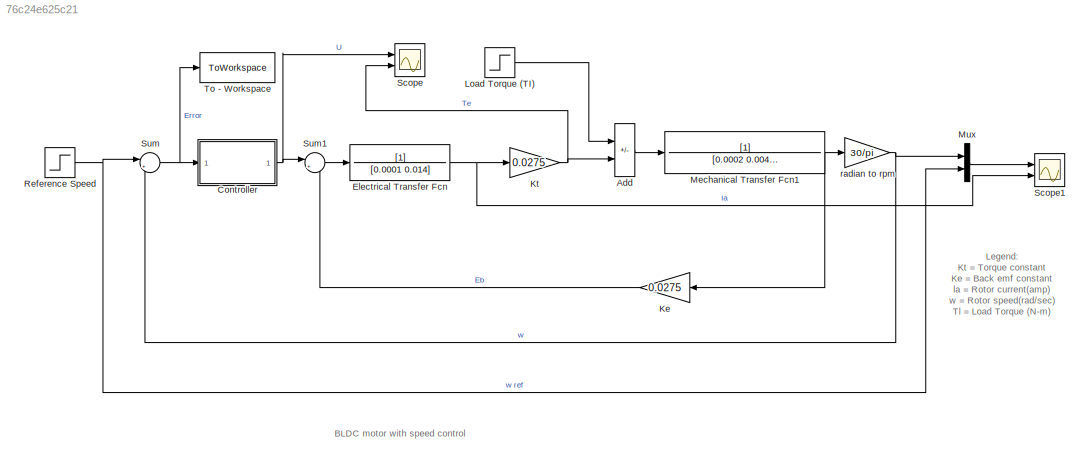
MODEL slx_76c24e625c21
KIND model
CONFIG AbsTol = auto
CONFIG EnableMultiTasking = off
CONFIG FixedStep = auto
CONFIG MaxStep = auto
CONFIG MinStep = auto
CONFIG RelTol = 1e-3
CONFIG SampleTimeConstraint = Unconstrained
CONFIG SolverName = VariableStepAuto
CONFIG StartTime = 0.0
CONFIG StopTime = 0.2
BLOCK [Sum] Add
  IconShape = rectangular
  Inputs = -+
  Ports = [2, 1]
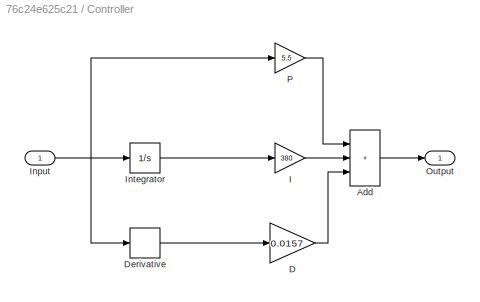
BLOCK [SubSystem] Controller
  Ports = [1, 1]
  RequestExecContextInheritance = off
BLOCK [Sum] Controller/Add
  IconShape = rectangular
  Inputs = +++
  Ports = [3, 1]
BLOCK [Gain] Controller/D
  Gain = 0.0157
BLOCK [Derivative] Controller/Derivative
BLOCK [Gain] Controller/I
  Gain = 380
BLOCK [Inport] Controller/Input
BLOCK [Integrator] Controller/Integrator
  Ports = [1, 1]
BLOCK [Outport] Controller/Output
BLOCK [Gain] Controller/P
  Gain = 5.5
BLOCK [TransferFcn] Electrical Transfer Fcn
  Denominator = [0.0001 0.014]
BLOCK [Gain] Ke
  Gain = 0.0275
BLOCK [Gain] Kt
  Gain = 0.0275
BLOCK [Step] Load Torque (TI)
  After = 10
  SampleTime = 0
  Time = 0.1
  ZeroCross = off
BLOCK [TransferFcn] Mechanical Transfer Fcn1
  Denominator = [0.0002 0.004586]
BLOCK [Mux] Mux
  DisplayOption = bar
  Inputs = 2
  Ports = [2, 1]
BLOCK [Step] Reference Speed
  After = 1500
  SampleTime = 0
  Time = 0
BLOCK [Scope] Scope
  Floating = off
  NumInputPorts = 2
  Ports = [2]
  ScopeSpecificationString = Simulink.scopes.TimeScopeBlockCfg('CurrentConfiguration', extmgr.ConfigurationSet(extmgr.Configuration('Core','General UI',true),extmgr.Configuration('Core','Source UI',true),extmgr.Configuration('Sources','WiredSimulink',true),extmgr.Configuration('Visuals','Time Domain',true),extmgr.Configuration('Tools','Plot Navigation',true),extmgr.Configuration('Tools','Measurements',true)),'Version','2020b'...<+1ch>
BLOCK [Scope] Scope1
  Floating = off
  NumInputPorts = 2
  Ports = [2]
  ScopeSpecificationString = Simulink.scopes.TimeScopeBlockCfg('CurrentConfiguration', extmgr.ConfigurationSet(extmgr.Configuration('Core','General UI',true),extmgr.Configuration('Core','Source UI',true),extmgr.Configuration('Sources','WiredSimulink',true,'DataLoggingVariableName','ScopeData1'),extmgr.Configuration('Visuals','Time Domain',true,'SerializedDisplays',{struct('MinYLimReal','-4600.9335','MaxYLimReal','4751.48395',...<+2207ch>
BLOCK [Sum] Sum
  Inputs = |+-
  Ports = [2, 1]
BLOCK [Sum] Sum1
  Inputs = |+-
  Ports = [2, 1]
BLOCK [ToWorkspace] To -  Workspace
  FixptAsFi = on
  MaxDataPoints = inf
  Ports = [1]
  SampleTime = -1
  SaveFormat = Timeseries
  VariableName = simout
BLOCK [Gain] radian to rpm
  Gain = 30/pi
ANNOTATION (root): Legend: Kt = Torque constant Ke = Back emf constant la = Rotor current(amp) w = Rotor speed(rad/sec) Tl = Load Torque (N-m) Te = Electomagnetic Torque Eb = Back emf(volts) U = DC bus voltage(volts)
ANNOTATION (root): BLDC motor with speed control
LINE Add:1 -> Mechanical Transfer Fcn1:1
LINE Controller/Add:1 -> Controller/Output:1
LINE Controller/D:1 -> Controller/Add:3
LINE Controller/Derivative:1 -> Controller/D:1
LINE Controller/I:1 -> Controller/Add:2
NET Controller/Input:1 -> Controller/Derivative:1, Controller/Integrator:1, Controller/P:1
LINE Controller/Integrator:1 -> Controller/I:1
LINE Controller/P:1 -> Controller/Add:1
NET Controller:1 -> Scope:1, Sum1:1
NET Electrical Transfer Fcn:1 -> Kt:1, Scope1:2
LINE Ke:1 -> Sum1:2
NET Kt:1 -> Add:2, Scope:2
LINE Load Torque (TI):1 -> Add:1
NET Mechanical Transfer Fcn1:1 -> Ke:1, radian to rpm:1
LINE Mux:1 -> Scope1:1
NET Reference Speed:1 -> Mux:2, Sum:1
LINE Sum1:1 -> Electrical Transfer Fcn:1
NET Sum:1 -> Controller:1, To -  Workspace:1
NET radian to rpm:1 -> Mux:1, Sum:2
note: NET lines group one-source signal fan-out (src -> all destinations, sorted); 1:1 wires keep LINE
